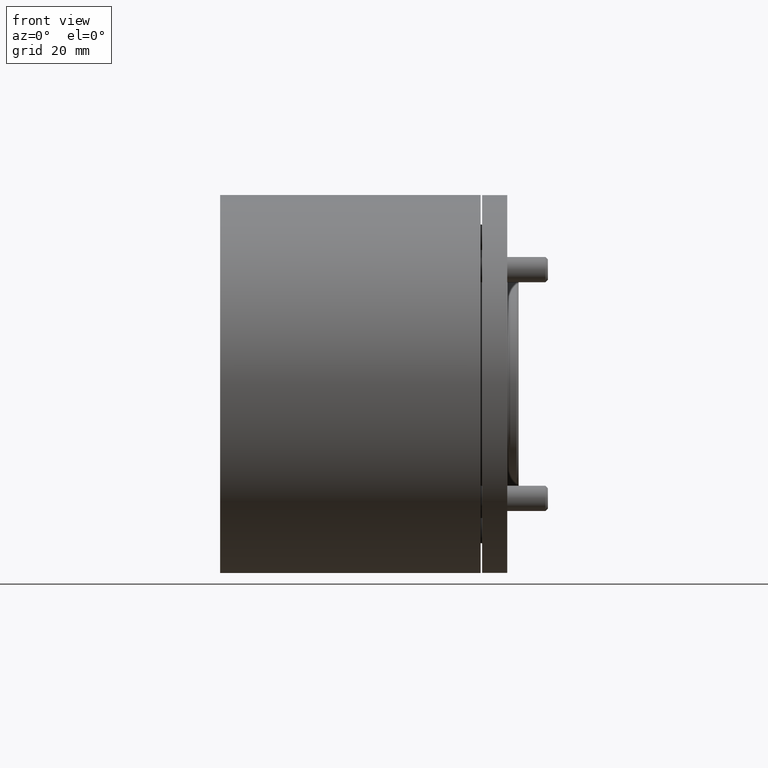
[diagram: clean part render]
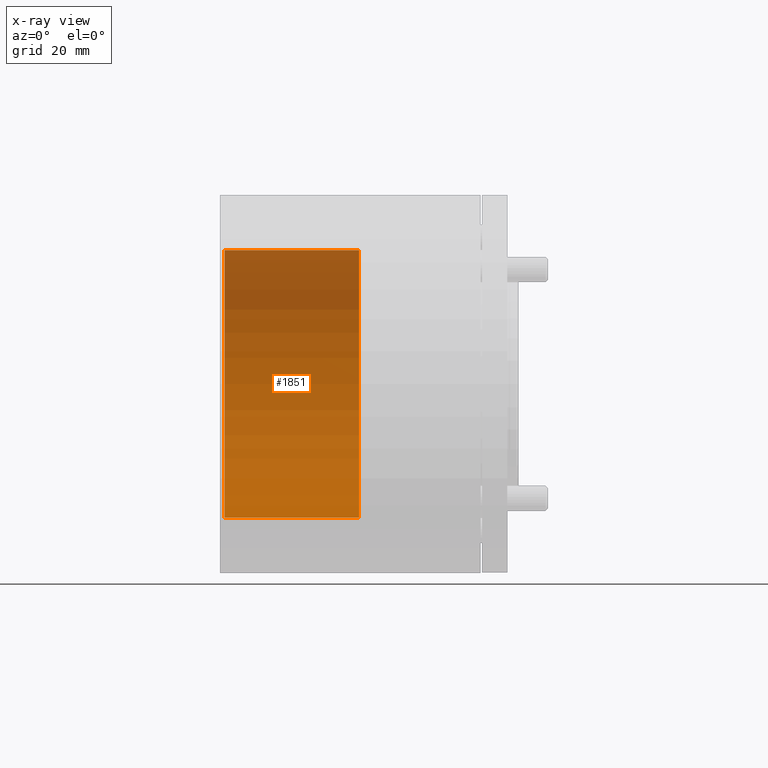
[diagram: x-ray — body ghosted, one internal face saturated and labeled with its STEP entity id]
A machine part, front view, then the same camera in x-ray: the body is ghosted and one INTERNAL B-rep face — a face not visible from any outside direction — is saturated and labeled: STEP entity #1851.
In plain terms, the highlighted cylindrical surface (partial cylindrical patch) has radius 31.85 mm, axis along (-1, -0, -0).
Its self-contained STEP definition (entity closure, byte-faithful):
#4 = VERTEX_POINT ( 'NONE', #1419 ) ;
#118 = DIRECTION ( 'NONE',  ( 0.000000000000000000, 0.000000000000000000, 1.000000000000000000 ) ) ;
#546 = CARTESIAN_POINT ( 'NONE',  ( -92.84011180044485911, 0.000000000000000000, 0.000000000000000000 ) ) ;
#1217 = CARTESIAN_POINT ( 'NONE',  ( 32.00000000000000000, 0.000000000000000000, 31.85000000000000497 ) ) ;
#1292 = VERTEX_POINT ( 'NONE', #6580 ) ;
#1419 = CARTESIAN_POINT ( 'NONE',  ( 0.000000000000000000, 0.000000000000000000, 31.85000000000000497 ) ) ;
#1658 = AXIS2_PLACEMENT_3D ( 'NONE', #8260, #10260, #10300 ) ;
#1851 = ADVANCED_FACE ( 'NONE', ( #3057 ), #8079, .T. ) ;
#2055 = ORIENTED_EDGE ( 'NONE', *, *, #8701, .T. ) ;
#2082 = DIRECTION ( 'NONE',  ( -1.000000000000000000, -0.000000000000000000, -0.000000000000000000 ) ) ;
#2127 = CARTESIAN_POINT ( 'NONE',  ( 32.00000000000000000, 0.000000000000000000, 0.000000000000000000 ) ) ;
#2268 = EDGE_LOOP ( 'NONE', ( #9117, #2055, #7280, #9888 ) ) ;
#2324 = EDGE_CURVE ( 'NONE', #2491, #12099, #2763, .T. ) ;
#2491 = VERTEX_POINT ( 'NONE', #1217 ) ;
#2763 = CIRCLE ( 'NONE', #8254, 31.85000000000000497 ) ;
#2783 = VECTOR ( 'NONE', #6730, 1000.000000000000000 ) ;
#3057 = FACE_OUTER_BOUND ( 'NONE', #2268, .T. ) ;
#3198 = AXIS2_PLACEMENT_3D ( 'NONE', #546, #11447, #12364 ) ;
#3209 = DIRECTION ( 'NONE',  ( -1.000000000000000000, -0.000000000000000000, -0.000000000000000000 ) ) ;
#3413 = LINE ( 'NONE', #6894, #2783 ) ;
#5936 = VECTOR ( 'NONE', #3209, 1000.000000000000000 ) ;
#6479 = CARTESIAN_POINT ( 'NONE',  ( 32.00000000000000000, 3.900500055284320622E-15, -31.85000000000000497 ) ) ;
#6580 = CARTESIAN_POINT ( 'NONE',  ( 0.000000000000000000, 3.900500055284320622E-15, -31.85000000000000497 ) ) ;
#6730 = DIRECTION ( 'NONE',  ( -1.000000000000000000, -0.000000000000000000, -0.000000000000000000 ) ) ;
#6894 = CARTESIAN_POINT ( 'NONE',  ( -92.84011180044485911, 0.000000000000000000, 31.85000000000000497 ) ) ;
#7280 = ORIENTED_EDGE ( 'NONE', *, *, #12642, .F. ) ;
#8079 = CYLINDRICAL_SURFACE ( 'NONE', #3198, 31.85000000000000497 ) ;
#8254 = AXIS2_PLACEMENT_3D ( 'NONE', #2127, #2082, #118 ) ;
#8260 = CARTESIAN_POINT ( 'NONE',  ( 0.000000000000000000, 0.000000000000000000, 0.000000000000000000 ) ) ;
#8458 = EDGE_CURVE ( 'NONE', #2491, #4, #3413, .T. ) ;
#8701 = EDGE_CURVE ( 'NONE', #12099, #1292, #9234, .T. ) ;
#9117 = ORIENTED_EDGE ( 'NONE', *, *, #2324, .T. ) ;
#9234 = LINE ( 'NONE', #11168, #5936 ) ;
#9888 = ORIENTED_EDGE ( 'NONE', *, *, #8458, .F. ) ;
#10260 = DIRECTION ( 'NONE',  ( -1.000000000000000000, -0.000000000000000000, -0.000000000000000000 ) ) ;
#10300 = DIRECTION ( 'NONE',  ( 0.000000000000000000, 0.000000000000000000, 1.000000000000000000 ) ) ;
#10831 = CIRCLE ( 'NONE', #1658, 31.85000000000000497 ) ;
#11168 = CARTESIAN_POINT ( 'NONE',  ( -92.84011180044485911, 3.900500055284320622E-15, -31.85000000000000497 ) ) ;
#11447 = DIRECTION ( 'NONE',  ( -1.000000000000000000, -0.000000000000000000, -0.000000000000000000 ) ) ;
#12099 = VERTEX_POINT ( 'NONE', #6479 ) ;
#12364 = DIRECTION ( 'NONE',  ( 0.000000000000000000, 0.000000000000000000, 1.000000000000000000 ) ) ;
#12642 = EDGE_CURVE ( 'NONE', #4, #1292, #10831, .T. ) ;